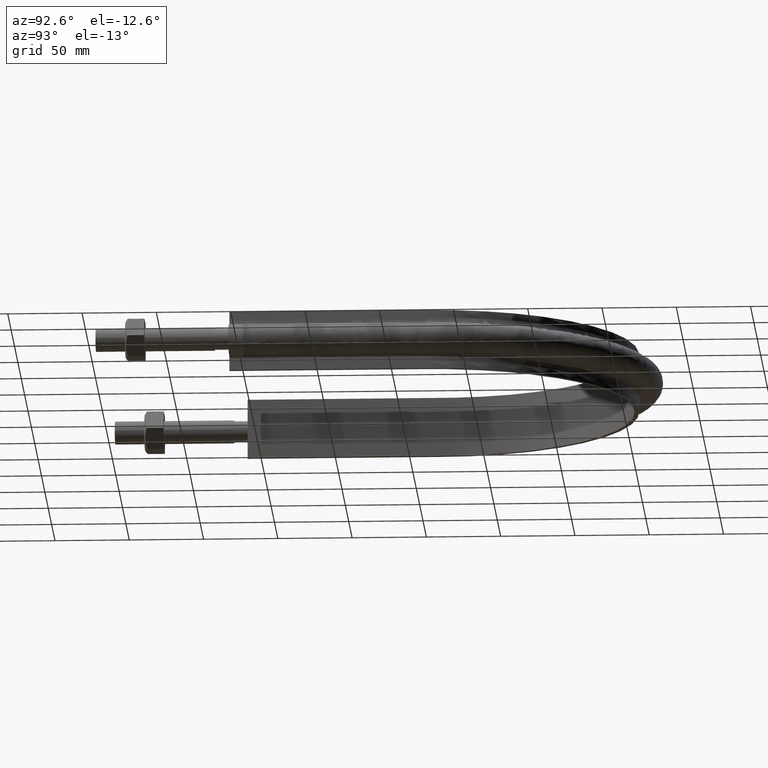
[diagram: clean part render]
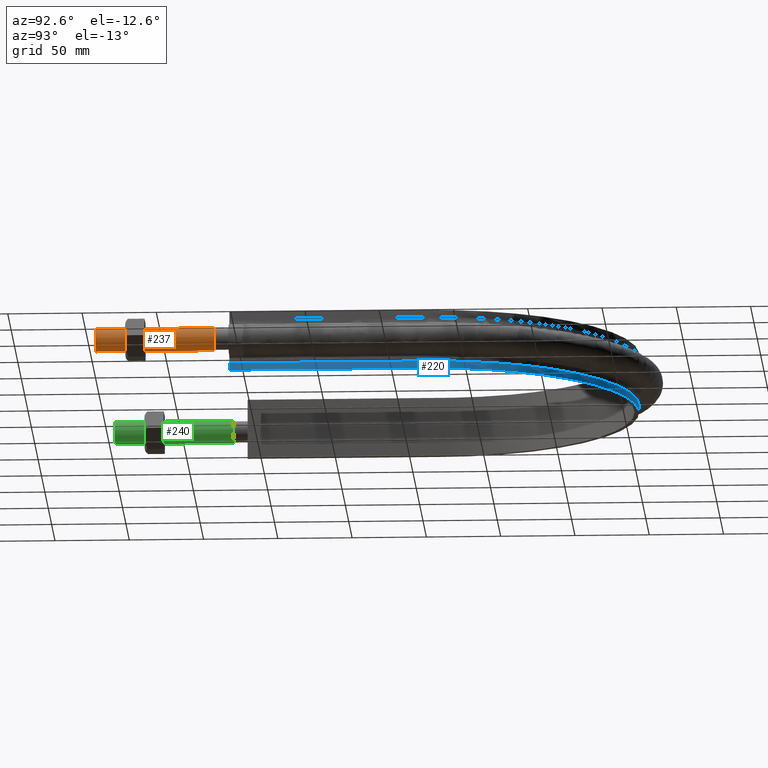
[diagram: same view with three faces highlighted in distinct colors, each labeled with its STEP entity id]
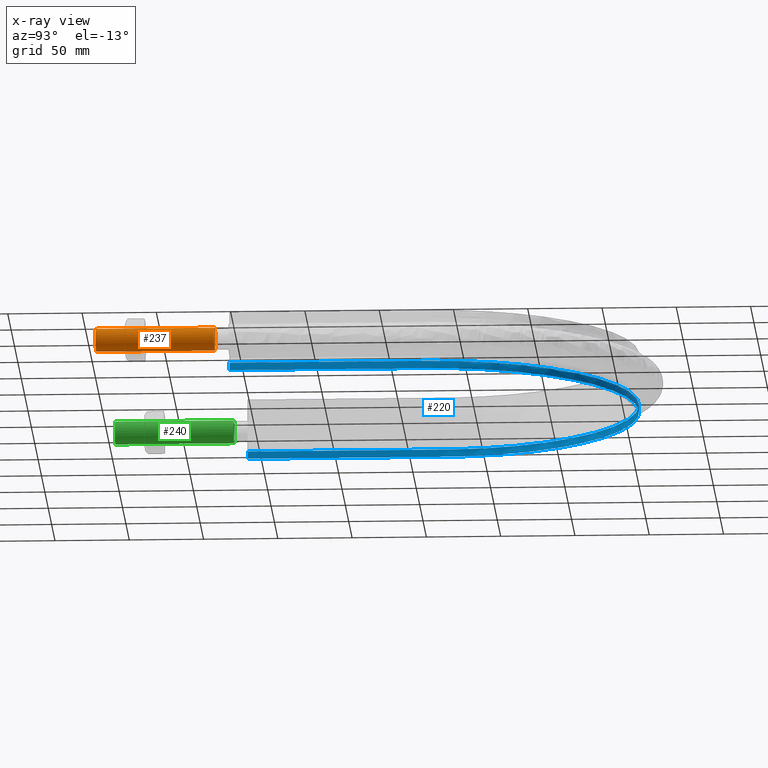
[diagram: x-ray of the same camera — body ghosted, the three highlighted faces saturated]
A machine part, auxiliary view with three faces highlighted in distinct colors.
The next image is the same camera in x-ray (body ghosted, the three faces saturated) — at least one of them is partly hidden behind the body in this view.
Their STEP definitions:

[orange] entity #237 — the highlighted cylindrical surface (bore or boss wall) has radius 7.75 mm, axis along (0, 1, -0).
#237 = ADVANCED_FACE( '', ( #320, #321 ), #322, .T. );
#320 = FACE_OUTER_BOUND( '', #1376, .T. );
#321 = FACE_OUTER_BOUND( '', #1377, .T. );
#322 = CYLINDRICAL_SURFACE( '', #1378, 7.75000000000001 );
#1376 = EDGE_LOOP( '', ( #1800 ) );
#1377 = EDGE_LOOP( '', ( #1801 ) );
#1378 = AXIS2_PLACEMENT_3D( '', #1802, #1803, #1804 );
#1800 = ORIENTED_EDGE( '', *, *, #2096, .T. );
#1801 = ORIENTED_EDGE( '', *, *, #2097, .F. );
#1802 = CARTESIAN_POINT( '', ( 143.000000000000, 80.0000000000000, -2.44921270764475E-014 ) );
#1803 = DIRECTION( '', ( 2.44921270764475E-016, 1.00000000000000, -3.06151588455594E-016 ) );
#1804 = DIRECTION( '', ( 1.00000000000000, -2.44921270764476E-016, -5.47382212626882E-048 ) );
#2096 = EDGE_CURVE( '', #2232, #2232, #2233, .T. );
#2097 = EDGE_CURVE( '', #2234, #2234, #2235, .T. );
#2232 = VERTEX_POINT( '', #2898 );
#2233 = CIRCLE( '', #2899, 7.75000000000001 );
#2234 = VERTEX_POINT( '', #2900 );
#2235 = CIRCLE( '', #2901, 7.75000000000001 );
#2898 = CARTESIAN_POINT( '', ( 150.750000000000, 80.0000000000000, -2.44921270764475E-014 ) );
#2899 = AXIS2_PLACEMENT_3D( '', #3206, #3207, #3208 );
#2900 = CARTESIAN_POINT( '', ( 150.750000000000, -1.94100107080847E-014, 0.000000000000000 ) );
#2901 = AXIS2_PLACEMENT_3D( '', #3209, #3210, #3211 );
#3206 = CARTESIAN_POINT( '', ( 143.000000000000, 80.0000000000000, -2.44921270764475E-014 ) );
#3207 = DIRECTION( '', ( -2.44921270764475E-016, -1.00000000000000, 3.06151588455594E-016 ) );
#3208 = DIRECTION( '', ( 1.00000000000000, -2.44921270764476E-016, 8.28136315232281E-047 ) );
#3209 = CARTESIAN_POINT( '', ( 143.000000000000, -1.75118708596600E-014, -6.41805644305019E-046 ) );
#3210 = DIRECTION( '', ( -2.44921270764475E-016, -1.00000000000000, 3.06151588455594E-016 ) );
#3211 = DIRECTION( '', ( 1.00000000000000, -2.44921270764476E-016, 8.28136315232281E-047 ) );

[blue] entity #220 — the highlighted face is a SurfaceOfExtrusion surface.
#220 = ADVANCED_FACE( '', ( #280 ), #281, .T. );
#280 = FACE_OUTER_BOUND( '', #419, .T. );
#281 = SURFACE_OF_LINEAR_EXTRUSION( '', #420, #421 );
#419 = EDGE_LOOP( '', ( #1570, #1571, #1572, #1573 ) );
#420 = B_SPLINE_CURVE_WITH_KNOTS( '', 3, ( #1574, #1575, #1576, #1577, #1578, #1579, #1580, #1581, #1582, #1583, #1584, #1585, #1586, #1587, #1588, #1589, #1590, #1591, #1592, #1593, #1594, #1595, #1596, #1597, #1598, #1599, #1600, #1601, #1602, #1603, #1604, #1605, #1606, #1607, #1608, #1609, #1610, #1611, #1612, #1613, #1614, #1615, #1616, #1617, #1618, #1619, #1620, #1621, #1622, #1623, #1624, #1625, #1626, #1627, #1628, #1629, #1630, #1631, #1632, #1633, #1634, #1635, #1636, #1637, #1638, #1639, #1640, #1641, #1642, #1643, #1644, #1645, #1646, #1647, #1648, #1649, #1650, #1651, #1652, #1653, #1654, #1655, #1656, #1657, #1658, #1659, #1660, #1661, #1662, #1663, #1664, #1665, #1666 ), .UNSPECIFIED., .F., .F., ( 4, 1, 1, 2, 2, 2, 2, 2, 2, 2, 2, 2, 2, 2, 2, 2, 2, 2, 2, 2, 2, 2, 2, 2, 2, 2, 2, 2, 2, 2, 2, 2, 2, 2, 2, 2, 2, 2, 2, 2, 2, 2, 2, 2, 2, 2, 1, 4 ), ( 0.000000000000000, 0.125000000000002, 0.187500000000003, 0.191406250000003, 0.195312500000003, 0.203125000000002, 0.218750000000003, 0.250000000000003, 0.257812500000003, 0.265625000000003, 0.281250000000002, 0.312500000000002, 0.328125000000002, 0.343750000000002, 0.375000000000001, 0.390625000000001, 0.398437500000001, 0.406250000000001, 0.437500000000001, 0.453125000000001, 0.460937500000000, 0.468750000000000, 0.500000000000000, 0.515625000000000, 0.523437500000000, 0.531250000000000, 0.562500000000000, 0.578124999999999, 0.585937499999999, 0.593749999999999, 0.624999999999999, 0.656249999999999, 0.664062499999999, 0.671874999999999, 0.687499999999998, 0.718749999999998, 0.722656249999998, 0.726562499999998, 0.734374999999998, 0.749999999999998, 0.781249999999997, 0.789062499999997, 0.796874999999997, 0.804687499999997, 0.808593749999997, 0.812499999999996, 0.874999999999998, 1.00000000000000 ), .UNSPECIFIED. );
#421 = VECTOR( '', #1667, 1000.00000000000 );
#1570 = ORIENTED_EDGE( '', *, *, #2046, .T. );
#1571 = ORIENTED_EDGE( '', *, *, #2047, .T. );
#1572 = ORIENTED_EDGE( '', *, *, #2048, .F. );
#1573 = ORIENTED_EDGE( '', *, *, #2049, .F. );
#1574 = CARTESIAN_POINT( '', ( -136.950000000000, 89.5000000000001, -15.0000000000000 ) );
#1575 = CARTESIAN_POINT( '', ( -136.950000000000, 118.108351814219, -15.0000000000000 ) );
#1576 = CARTESIAN_POINT( '', ( -136.950000000000, 161.020879535546, -15.0000000000000 ) );
#1577 = CARTESIAN_POINT( '', ( -136.950000000000, 204.827418251068, -15.0000000000000 ) );
#1578 = CARTESIAN_POINT( '', ( -136.950000000000, 220.025605152372, -15.0000000000000 ) );
#1579 = CARTESIAN_POINT( '', ( -136.950000000000, 221.813627140760, -15.0000000000000 ) );
#1580 = CARTESIAN_POINT( '', ( -136.951346114390, 222.707775042567, -15.0000000000000 ) );
#1581 = CARTESIAN_POINT( '', ( -136.920609614582, 225.386681945511, -15.0000000000000 ) );
#1582 = CARTESIAN_POINT( '', ( -136.864816667886, 227.169029468828, -15.0000000000000 ) );
#1583 = CARTESIAN_POINT( '', ( -136.593146380454, 232.505464995944, -15.0000000000000 ) );
#1584 = CARTESIAN_POINT( '', ( -136.273189661635, 236.048967525582, -15.0000000000000 ) );
#1585 = CARTESIAN_POINT( '', ( -134.901802697672, 246.637621477265, -15.0000000000000 ) );
#1586 = CARTESIAN_POINT( '', ( -133.442512350631, 253.641291170172, -15.0000000000000 ) );
#1587 = CARTESIAN_POINT( '', ( -130.901383601594, 262.322953634697, -15.0000000000000 ) );
#1588 = CARTESIAN_POINT( '', ( -130.357015832177, 264.055610275365, -15.0000000000000 ) );
#1589 = CARTESIAN_POINT( '', ( -129.193847954833, 267.513353357775, -15.0000000000000 ) );
#1590 = CARTESIAN_POINT( '', ( -128.573476846170, 269.242131151953, -15.0000000000000 ) );
#1591 = CARTESIAN_POINT( '', ( -126.618174555290, 274.362723165805, -15.0000000000000 ) );
#1592 = CARTESIAN_POINT( '', ( -125.184490197968, 277.702984774707, -15.0000000000000 ) );
#1593 = CARTESIAN_POINT( '', ( -120.505328593637, 287.510336023068, -15.0000000000000 ) );
#1594 = CARTESIAN_POINT( '', ( -116.886061102882, 293.766429658881, -15.0000000000000 ) );
#1595 = CARTESIAN_POINT( '', ( -110.711856714430, 302.729863608688, -15.0000000000000 ) );
#1596 = CARTESIAN_POINT( '', ( -108.528201325971, 305.647880339849, -15.0000000000000 ) );
#1597 = CARTESIAN_POINT( '', ( -103.904407759561, 311.334716161009, -15.0000000000000 ) );
#1598 = CARTESIAN_POINT( '', ( -101.494535344133, 314.066402872892, -15.0000000000000 ) );
#1599 = CARTESIAN_POINT( '', ( -93.9768857717446, 321.932991567950, -15.0000000000000 ) );
#1600 = CARTESIAN_POINT( '', ( -88.5810092968209, 326.739345713163, -15.0000000000000 ) );
#1601 = CARTESIAN_POINT( '', ( -79.9242816112247, 333.306932196036, -15.0000000000000 ) );
#1602 = CARTESIAN_POINT( '', ( -76.9444034133837, 335.388585548725, -15.0000000000000 ) );
#1603 = CARTESIAN_POINT( '', ( -72.3295994596727, 338.345723108325, -15.0000000000000 ) );
#1604 = CARTESIAN_POINT( '', ( -70.7649027135216, 339.304967513353, -15.0000000000000 ) );
#1605 = CARTESIAN_POINT( '', ( -67.6140063459477, 341.151291429898, -15.0000000000000 ) );
#1606 = CARTESIAN_POINT( '', ( -66.0248395654166, 342.040393152112, -15.0000000000000 ) );
#1607 = CARTESIAN_POINT( '', ( -58.0112237793678, 346.317614365294, -15.0000000000000 ) );
#1608 = CARTESIAN_POINT( '', ( -51.3838695117621, 349.201965048637, -15.0000000000000 ) );
#1609 = CARTESIAN_POINT( '', ( -41.1199306990064, 352.726783518546, -15.0000000000000 ) );
#1610 = CARTESIAN_POINT( '', ( -37.6449536795551, 353.768486983704, -15.0000000000000 ) );
#1611 = CARTESIAN_POINT( '', ( -32.3508572250080, 355.128370680882, -15.0000000000000 ) );
#1612 = CARTESIAN_POINT( '', ( -30.5711219683573, 355.548134877370, -15.0000000000000 ) );
#1613 = CARTESIAN_POINT( '', ( -26.9898806015858, 356.317593884026, -15.0000000000000 ) );
#1614 = CARTESIAN_POINT( '', ( -25.1975634552110, 356.665375332186, -15.0000000000000 ) );
#1615 = CARTESIAN_POINT( '', ( -16.2276412077899, 358.222717729931, -15.0000000000000 ) );
#1616 = CARTESIAN_POINT( '', ( -9.02523440856736, 358.892110978601, -15.0000000000000 ) );
#1617 = CARTESIAN_POINT( '', ( 1.81786937464440, 359.036051739121, -15.0000000000000 ) );
#1618 = CARTESIAN_POINT( '', ( 5.43888442947024, 358.939261125259, -15.0000000000000 ) );
#1619 = CARTESIAN_POINT( '', ( 10.8804397715058, 358.575567070277, -15.0000000000000 ) );
#1620 = CARTESIAN_POINT( '', ( 12.6959650568691, 358.417887683017, -15.0000000000000 ) );
#1621 = CARTESIAN_POINT( '', ( 16.3304010621810, 358.028795956680, -15.0000000000000 ) );
#1622 = CARTESIAN_POINT( '', ( 18.1509778757328, 357.796964222104, -15.0000000000000 ) );
#1623 = CARTESIAN_POINT( '', ( 27.1816143256275, 356.463826032725, -15.0000000000000 ) );
#1624 = CARTESIAN_POINT( '', ( 34.2390508622090, 354.839668956545, -15.0000000000000 ) );
#1625 = CARTESIAN_POINT( '', ( 44.5810778790186, 351.588595998648, -15.0000000000000 ) );
#1626 = CARTESIAN_POINT( '', ( 47.9874716560260, 350.368228980460, -15.0000000000000 ) );
#1627 = CARTESIAN_POINT( '', ( 53.0340989443394, 348.327522487613, -15.0000000000000 ) );
#1628 = CARTESIAN_POINT( '', ( 54.7057757971050, 347.612133002601, -15.0000000000000 ) );
#1629 = CARTESIAN_POINT( '', ( 58.0278931759406, 346.110472498891, -15.0000000000000 ) );
#1630 = CARTESIAN_POINT( '', ( 59.6804492387648, 345.323156348271, -15.0000000000000 ) );
#1631 = CARTESIAN_POINT( '', ( 67.8662269615211, 341.218943105620, -15.0000000000000 ) );
#1632 = CARTESIAN_POINT( '', ( 74.0672509269300, 337.457093171529, -15.0000000000000 ) );
#1633 = CARTESIAN_POINT( '', ( 85.8066697855656, 329.021264559786, -15.0000000000000 ) );
#1634 = CARTESIAN_POINT( '', ( 91.3450708111379, 324.347294323490, -15.0000000000000 ) );
#1635 = CARTESIAN_POINT( '', ( 97.8308624293475, 317.902999344751, -15.0000000000000 ) );
#1636 = CARTESIAN_POINT( '', ( 99.1063522438762, 316.583042958306, -15.0000000000000 ) );
#1637 = CARTESIAN_POINT( '', ( 101.590244963731, 313.906741637720, -15.0000000000000 ) );
#1638 = CARTESIAN_POINT( '', ( 102.801672903783, 312.547491271698, -15.0000000000000 ) );
#1639 = CARTESIAN_POINT( '', ( 106.346254323220, 308.407722078790, -15.0000000000000 ) );
#1640 = CARTESIAN_POINT( '', ( 108.589893323643, 305.565315081670, -15.0000000000000 ) );
#1641 = CARTESIAN_POINT( '', ( 114.970214089517, 296.795700236809, -15.0000000000000 ) );
#1642 = CARTESIAN_POINT( '', ( 118.759288976830, 290.628165305693, -15.0000000000000 ) );
#1643 = CARTESIAN_POINT( '', ( 122.482049801510, 283.316381079695, -15.0000000000000 ) );
#1644 = CARTESIAN_POINT( '', ( 122.888127373353, 282.498732064797, -15.0000000000000 ) );
#1645 = CARTESIAN_POINT( '', ( 123.684984798984, 280.852857558546, -15.0000000000000 ) );
#1646 = CARTESIAN_POINT( '', ( 124.076188679038, 280.023697389435, -15.0000000000000 ) );
#1647 = CARTESIAN_POINT( '', ( 125.223076035006, 277.527782870249, -15.0000000000000 ) );
#1648 = CARTESIAN_POINT( '', ( 125.951536386374, 275.853956327217, -15.0000000000000 ) );
#1649 = CARTESIAN_POINT( '', ( 128.029666807743, 270.803138776699, -15.0000000000000 ) );
#1650 = CARTESIAN_POINT( '', ( 129.272445179675, 267.396908032732, -15.0000000000000 ) );
#1651 = CARTESIAN_POINT( '', ( 132.586786070952, 257.064969568913, -15.0000000000000 ) );
#1652 = CARTESIAN_POINT( '', ( 134.247821790206, 250.026964115281, -15.0000000000000 ) );
#1653 = CARTESIAN_POINT( '', ( 135.630952375180, 241.039845429982, -15.0000000000000 ) );
#1654 = CARTESIAN_POINT( '', ( 135.872641992840, 239.232864972872, -15.0000000000000 ) );
#1655 = CARTESIAN_POINT( '', ( 136.284803757172, 235.599422844282, -15.0000000000000 ) );
#1656 = CARTESIAN_POINT( '', ( 136.455153129533, 233.772516640443, -15.0000000000000 ) );
#1657 = CARTESIAN_POINT( '', ( 136.721567786733, 230.123756924611, -15.0000000000000 ) );
#1658 = CARTESIAN_POINT( '', ( 136.818027802696, 228.298840221395, -15.0000000000000 ) );
#1659 = CARTESIAN_POINT( '', ( 136.907499245267, 225.560658472589, -15.0000000000000 ) );
#1660 = CARTESIAN_POINT( '', ( 136.928116262671, 224.647796719939, -15.0000000000000 ) );
#1661 = CARTESIAN_POINT( '', ( 136.950875956315, 222.821803321072, -15.0000000000000 ) );
#1662 = CARTESIAN_POINT( '', ( 136.950000000000, 221.908627575340, -15.0000000000000 ) );
#1663 = CARTESIAN_POINT( '', ( 136.950000000000, 206.384857445817, -15.0000000000000 ) );
#1664 = CARTESIAN_POINT( '', ( 136.950000000000, 162.553035903636, -15.0000000000000 ) );
#1665 = CARTESIAN_POINT( '', ( 136.950000000000, 118.721214361455, -15.0000000000000 ) );
#1666 = CARTESIAN_POINT( '', ( 136.950000000000, 89.5000000000000, -15.0000000000000 ) );
#1667 = DIRECTION( '', ( -7.49830360911069E-032, -3.06151588455594E-016, -1.00000000000000 ) );
#2046 = EDGE_CURVE( '', #2154, #2155, #2156, .T. );
#2047 = EDGE_CURVE( '', #2155, #2157, #2158, .F. );
#2048 = EDGE_CURVE( '', #2159, #2157, #2160, .T. );
#2049 = EDGE_CURVE( '', #2154, #2159, #2161, .F. );
#2154 = VERTEX_POINT( '', #2452 );
#2155 = VERTEX_POINT( '', #2453 );
#2156 = B_SPLINE_CURVE_WITH_KNOTS( '', 3, ( #2454, #2455, #2456, #2457, #2458, #2459, #2460, #2461, #2462, #2463, #2464, #2465, #2466, #2467, #2468, #2469, #2470, #2471, #2472, #2473, #2474, #2475, #2476, #2477, #2478, #2479, #2480, #2481, #2482, #2483, #2484, #2485, #2486, #2487, #2488, #2489, #2490, #2491, #2492, #2493, #2494, #2495, #2496, #2497, #2498, #2499, #2500, #2501, #2502, #2503, #2504, #2505, #2506, #2507, #2508, #2509, #2510, #2511, #2512, #2513, #2514, #2515, #2516, #2517, #2518, #2519, #2520, #2521, #2522, #2523, #2524, #2525, #2526, #2527, #2528, #2529, #2530, #2531, #2532, #2533, #2534, #2535, #2536, #2537, #2538, #2539, #2540, #2541, #2542, #2543, #2544, #2545, #2546 ), .UNSPECIFIED., .F., .F., ( 4, 1, 1, 2, 2, 2, 2, 2, 2, 2, 2, 2, 2, 2, 2, 2, 2, 2, 2, 2, 2, 2, 2, 2, 2, 2, 2, 2, 2, 2, 2, 2, 2, 2, 2, 2, 2, 2, 2, 2, 2, 2, 2, 2, 2, 2, 1, 4 ), ( 0.000000000000000, 0.125000000000002, 0.187500000000003, 0.191406250000003, 0.195312500000003, 0.203125000000002, 0.218750000000003, 0.250000000000003, 0.257812500000003, 0.265625000000003, 0.281250000000002, 0.312500000000002, 0.328125000000002, 0.343750000000002, 0.375000000000001, 0.390625000000001, 0.398437500000001, 0.406250000000001, 0.437500000000001, 0.453125000000001, 0.460937500000000, 0.468750000000000, 0.500000000000000, 0.515625000000000, 0.523437500000000, 0.531250000000000, 0.562500000000000, 0.578124999999999, 0.585937499999999, 0.593749999999999, 0.624999999999999, 0.656249999999999, 0.664062499999999, 0.671874999999999, 0.687499999999998, 0.718749999999998, 0.722656249999998, 0.726562499999998, 0.734374999999998, 0.749999999999998, 0.781249999999997, 0.789062499999997, 0.796874999999997, 0.804687499999997, 0.808593749999997, 0.812499999999996, 0.874999999999998, 1.00000000000000 ), .UNSPECIFIED. );
#2157 = VERTEX_POINT( '', #2547 );
#2158 = LINE( '', #2548, #2549 );
#2159 = VERTEX_POINT( '', #2550 );
#2160 = B_SPLINE_CURVE_WITH_KNOTS( '', 3, ( #2551, #2552, #2553, #2554, #2555, #2556, #2557, #2558, #2559, #2560, #2561, #2562, #2563, #2564, #2565, #2566, #2567, #2568, #2569, #2570, #2571, #2572, #2573, #2574, #2575, #2576, #2577, #2578, #2579, #2580, #2581, #2582, #2583, #2584, #2585, #2586, #2587, #2588, #2589, #2590, #2591, #2592, #2593, #2594, #2595, #2596, #2597, #2598, #2599, #2600, #2601, #2602, #2603, #2604, #2605, #2606, #2607, #2608, #2609, #2610, #2611, #2612, #2613, #2614, #2615, #2616, #2617, #2618, #2619, #2620, #2621, #2622, #2623, #2624, #2625, #2626, #2627, #2628, #2629, #2630, #2631, #2632, #2633, #2634, #2635, #2636, #2637, #2638, #2639, #2640, #2641, #2642, #2643, #2644, #2645, #2646, #2647, #2648, #2649, #2650, #2651, #2652, #2653, #2654, #2655, #2656, #2657 ), .UNSPECIFIED., .F., .F., ( 4, 1, 2, 2, 2, 2, 2, 2, 2, 2, 2, 2, 2, 2, 2, 2, 2, 2, 2, 2, 2, 2, 2, 2, 2, 2, 2, 2, 2, 2, 2, 2, 2, 2, 2, 1, 2, 2, 2, 2, 2, 2, 2, 2, 2, 2, 2, 2, 2, 2, 2, 2, 2, 1, 4 ), ( 1.38777878078145E-017, 0.0874256844655822, 0.131138526698373, 0.133870579337923, 0.136602631977472, 0.142066737256571, 0.152994947814769, 0.174851368931164, 0.180315474210263, 0.183047526849813, 0.185779579489362, 0.196707790047560, 0.218564211163956, 0.229492421722154, 0.232224474361704, 0.234956527001253, 0.240420632280352, 0.262277053396748, 0.273205263954946, 0.275937316594496, 0.278669369234046, 0.284133474513145, 0.305989895629541, 0.316918106187739, 0.322382211466839, 0.325114264106388, 0.327846316745938, 0.349702737862334, 0.360630948420533, 0.366095053699632, 0.368827106339181, 0.371559158978731, 0.393415580095127, 0.415272001211524, 0.418004053851073, 0.420736106490623, 0.426200211769722, 0.437128422327920, 0.458984843444315, 0.461716896083865, 0.464448948723414, 0.469913054002513, 0.480841264560712, 0.502697685677108, 0.508161790956207, 0.513625896235306, 0.524554106793504, 0.546410527909899, 0.551874633188998, 0.557338738468097, 0.562802843747196, 0.565534896386745, 0.568266949026295, 0.611979791259086, 0.699405475724667 ), .UNSPECIFIED. );
#2161 = LINE( '', #2658, #2659 );
#2452 = CARTESIAN_POINT( '', ( -136.950000000000, 89.5000000000001, -15.0000000000000 ) );
#2453 = CARTESIAN_POINT( '', ( 136.950000000000, 89.5000000000001, -15.0000000000000 ) );
#2454 = CARTESIAN_POINT( '', ( -136.950000000000, 89.5000000000001, -15.0000000000000 ) );
#2455 = CARTESIAN_POINT( '', ( -136.950000000000, 118.108351814219, -15.0000000000000 ) );
#2456 = CARTESIAN_POINT( '', ( -136.950000000000, 161.020879535546, -15.0000000000000 ) );
#2457 = CARTESIAN_POINT( '', ( -136.950000000000, 204.827418251068, -15.0000000000000 ) );
#2458 = CARTESIAN_POINT( '', ( -136.950000000000, 220.025605152372, -15.0000000000000 ) );
#2459 = CARTESIAN_POINT( '', ( -136.950000000000, 221.813627140760, -15.0000000000000 ) );
#2460 = CARTESIAN_POINT( '', ( -136.951346114390, 222.707775042567, -15.0000000000000 ) );
#2461 = CARTESIAN_POINT( '', ( -136.920609614582, 225.386681945511, -15.0000000000000 ) );
#2462 = CARTESIAN_POINT( '', ( -136.864816667886, 227.169029468828, -15.0000000000000 ) );
#2463 = CARTESIAN_POINT( '', ( -136.593146380454, 232.505464995944, -15.0000000000000 ) );
#2464 = CARTESIAN_POINT( '', ( -136.273189661635, 236.048967525582, -15.0000000000000 ) );
#2465 = CARTESIAN_POINT( '', ( -134.901802697672, 246.637621477265, -15.0000000000000 ) );
#2466 = CARTESIAN_POINT( '', ( -133.442512350631, 253.641291170172, -15.0000000000000 ) );
#2467 = CARTESIAN_POINT( '', ( -130.901383601594, 262.322953634697, -15.0000000000000 ) );
#2468 = CARTESIAN_POINT( '', ( -130.357015832177, 264.055610275365, -15.0000000000000 ) );
#2469 = CARTESIAN_POINT( '', ( -129.193847954833, 267.513353357775, -15.0000000000000 ) );
#2470 = CARTESIAN_POINT( '', ( -128.573476846170, 269.242131151953, -15.0000000000000 ) );
#2471 = CARTESIAN_POINT( '', ( -126.618174555290, 274.362723165805, -15.0000000000000 ) );
#2472 = CARTESIAN_POINT( '', ( -125.184490197968, 277.702984774707, -15.0000000000000 ) );
#2473 = CARTESIAN_POINT( '', ( -120.505328593637, 287.510336023068, -15.0000000000000 ) );
#2474 = CARTESIAN_POINT( '', ( -116.886061102882, 293.766429658881, -15.0000000000000 ) );
#2475 = CARTESIAN_POINT( '', ( -110.711856714430, 302.729863608688, -15.0000000000000 ) );
#2476 = CARTESIAN_POINT( '', ( -108.528201325971, 305.647880339849, -15.0000000000000 ) );
#2477 = CARTESIAN_POINT( '', ( -103.904407759561, 311.334716161009, -15.0000000000000 ) );
#2478 = CARTESIAN_POINT( '', ( -101.494535344133, 314.066402872892, -15.0000000000000 ) );
#2479 = CARTESIAN_POINT( '', ( -93.9768857717446, 321.932991567950, -15.0000000000000 ) );
#2480 = CARTESIAN_POINT( '', ( -88.5810092968209, 326.739345713163, -15.0000000000000 ) );
#2481 = CARTESIAN_POINT( '', ( -79.9242816112247, 333.306932196036, -15.0000000000000 ) );
#2482 = CARTESIAN_POINT( '', ( -76.9444034133837, 335.388585548725, -15.0000000000000 ) );
#2483 = CARTESIAN_POINT( '', ( -72.3295994596727, 338.345723108325, -15.0000000000000 ) );
#2484 = CARTESIAN_POINT( '', ( -70.7649027135216, 339.304967513353, -15.0000000000000 ) );
#2485 = CARTESIAN_POINT( '', ( -67.6140063459477, 341.151291429898, -15.0000000000000 ) );
#2486 = CARTESIAN_POINT( '', ( -66.0248395654166, 342.040393152112, -15.0000000000000 ) );
#2487 = CARTESIAN_POINT( '', ( -58.0112237793678, 346.317614365294, -15.0000000000000 ) );
#2488 = CARTESIAN_POINT( '', ( -51.3838695117621, 349.201965048637, -15.0000000000000 ) );
#2489 = CARTESIAN_POINT( '', ( -41.1199306990064, 352.726783518546, -15.0000000000000 ) );
#2490 = CARTESIAN_POINT( '', ( -37.6449536795551, 353.768486983704, -15.0000000000000 ) );
#2491 = CARTESIAN_POINT( '', ( -32.3508572250080, 355.128370680882, -15.0000000000000 ) );
#2492 = CARTESIAN_POINT( '', ( -30.5711219683573, 355.548134877370, -15.0000000000000 ) );
#2493 = CARTESIAN_POINT( '', ( -26.9898806015858, 356.317593884026, -15.0000000000000 ) );
#2494 = CARTESIAN_POINT( '', ( -25.1975634552110, 356.665375332186, -15.0000000000000 ) );
#2495 = CARTESIAN_POINT( '', ( -16.2276412077899, 358.222717729931, -15.0000000000000 ) );
#2496 = CARTESIAN_POINT( '', ( -9.02523440856736, 358.892110978601, -15.0000000000000 ) );
#2497 = CARTESIAN_POINT( '', ( 1.81786937464440, 359.036051739121, -15.0000000000000 ) );
#2498 = CARTESIAN_POINT( '', ( 5.43888442947024, 358.939261125259, -15.0000000000000 ) );
#2499 = CARTESIAN_POINT( '', ( 10.8804397715058, 358.575567070277, -15.0000000000000 ) );
#2500 = CARTESIAN_POINT( '', ( 12.6959650568691, 358.417887683017, -15.0000000000000 ) );
#2501 = CARTESIAN_POINT( '', ( 16.3304010621810, 358.028795956680, -15.0000000000000 ) );
#2502 = CARTESIAN_POINT( '', ( 18.1509778757328, 357.796964222104, -15.0000000000000 ) );
#2503 = CARTESIAN_POINT( '', ( 27.1816143256275, 356.463826032725, -15.0000000000000 ) );
#2504 = CARTESIAN_POINT( '', ( 34.2390508622090, 354.839668956545, -15.0000000000000 ) );
#2505 = CARTESIAN_POINT( '', ( 44.5810778790186, 351.588595998648, -15.0000000000000 ) );
#2506 = CARTESIAN_POINT( '', ( 47.9874716560260, 350.368228980460, -15.0000000000000 ) );
#2507 = CARTESIAN_POINT( '', ( 53.0340989443394, 348.327522487613, -15.0000000000000 ) );
#2508 = CARTESIAN_POINT( '', ( 54.7057757971050, 347.612133002601, -15.0000000000000 ) );
#2509 = CARTESIAN_POINT( '', ( 58.0278931759406, 346.110472498891, -15.0000000000000 ) );
#2510 = CARTESIAN_POINT( '', ( 59.6804492387648, 345.323156348271, -15.0000000000000 ) );
#2511 = CARTESIAN_POINT( '', ( 67.8662269615211, 341.218943105620, -15.0000000000000 ) );
#2512 = CARTESIAN_POINT( '', ( 74.0672509269300, 337.457093171529, -15.0000000000000 ) );
#2513 = CARTESIAN_POINT( '', ( 85.8066697855656, 329.021264559786, -15.0000000000000 ) );
#2514 = CARTESIAN_POINT( '', ( 91.3450708111379, 324.347294323490, -15.0000000000000 ) );
#2515 = CARTESIAN_POINT( '', ( 97.8308624293475, 317.902999344751, -15.0000000000000 ) );
#2516 = CARTESIAN_POINT( '', ( 99.1063522438762, 316.583042958306, -15.0000000000000 ) );
#2517 = CARTESIAN_POINT( '', ( 101.590244963731, 313.906741637720, -15.0000000000000 ) );
#2518 = CARTESIAN_POINT( '', ( 102.801672903783, 312.547491271698, -15.0000000000000 ) );
#2519 = CARTESIAN_POINT( '', ( 106.346254323220, 308.407722078790, -15.0000000000000 ) );
#2520 = CARTESIAN_POINT( '', ( 108.589893323643, 305.565315081670, -15.0000000000000 ) );
#2521 = CARTESIAN_POINT( '', ( 114.970214089517, 296.795700236809, -15.0000000000000 ) );
#2522 = CARTESIAN_POINT( '', ( 118.759288976830, 290.628165305693, -15.0000000000000 ) );
#2523 = CARTESIAN_POINT( '', ( 122.482049801510, 283.316381079695, -15.0000000000000 ) );
#2524 = CARTESIAN_POINT( '', ( 122.888127373353, 282.498732064797, -15.0000000000000 ) );
#2525 = CARTESIAN_POINT( '', ( 123.684984798984, 280.852857558546, -15.0000000000000 ) );
#2526 = CARTESIAN_POINT( '', ( 124.076188679038, 280.023697389435, -15.0000000000000 ) );
#2527 = CARTESIAN_POINT( '', ( 125.223076035006, 277.527782870249, -15.0000000000000 ) );
#2528 = CARTESIAN_POINT( '', ( 125.951536386374, 275.853956327217, -15.0000000000000 ) );
#2529 = CARTESIAN_POINT( '', ( 128.029666807743, 270.803138776699, -15.0000000000000 ) );
#2530 = CARTESIAN_POINT( '', ( 129.272445179675, 267.396908032732, -15.0000000000000 ) );
#2531 = CARTESIAN_POINT( '', ( 132.586786070952, 257.064969568913, -15.0000000000000 ) );
#2532 = CARTESIAN_POINT( '', ( 134.247821790206, 250.026964115281, -15.0000000000000 ) );
#2533 = CARTESIAN_POINT( '', ( 135.630952375180, 241.039845429982, -15.0000000000000 ) );
#2534 = CARTESIAN_POINT( '', ( 135.872641992840, 239.232864972872, -15.0000000000000 ) );
#2535 = CARTESIAN_POINT( '', ( 136.284803757172, 235.599422844282, -15.0000000000000 ) );
#2536 = CARTESIAN_POINT( '', ( 136.455153129533, 233.772516640443, -15.0000000000000 ) );
#2537 = CARTESIAN_POINT( '', ( 136.721567786733, 230.123756924611, -15.0000000000000 ) );
#2538 = CARTESIAN_POINT( '', ( 136.818027802696, 228.298840221395, -15.0000000000000 ) );
#2539 = CARTESIAN_POINT( '', ( 136.907499245267, 225.560658472589, -15.0000000000000 ) );
#2540 = CARTESIAN_POINT( '', ( 136.928116262671, 224.647796719939, -15.0000000000000 ) );
#2541 = CARTESIAN_POINT( '', ( 136.950875956315, 222.821803321072, -15.0000000000000 ) );
#2542 = CARTESIAN_POINT( '', ( 136.950000000000, 221.908627575340, -15.0000000000000 ) );
#2543 = CARTESIAN_POINT( '', ( 136.950000000000, 206.384857445817, -15.0000000000000 ) );
#2544 = CARTESIAN_POINT( '', ( 136.950000000000, 162.553035903636, -15.0000000000000 ) );
#2545 = CARTESIAN_POINT( '', ( 136.950000000000, 118.721214361455, -15.0000000000000 ) );
#2546 = CARTESIAN_POINT( '', ( 136.950000000000, 89.5000000000000, -15.0000000000000 ) );
#2547 = CARTESIAN_POINT( '', ( 136.950000000000, 89.5000000000001, -20.0000000000000 ) );
#2548 = CARTESIAN_POINT( '', ( 136.950000000000, 89.5000000000001, 15.0000000000000 ) );
#2549 = VECTOR( '', #3144, 1000.00000000000 );
#2550 = CARTESIAN_POINT( '', ( -136.950000000000, 89.5000000000001, -20.0000000000000 ) );
#2551 = CARTESIAN_POINT( '', ( -136.950000000000, 89.5000000000001, -20.0000000000000 ) );
#2552 = CARTESIAN_POINT( '', ( -136.950000000000, 118.641900248097, -20.0000000000000 ) );
#2553 = CARTESIAN_POINT( '', ( -136.950000000000, 162.354750620243, -20.0000000000000 ) );
#2554 = CARTESIAN_POINT( '', ( -136.949999999999, 206.067600992389, -20.0000000000000 ) );
#2555 = CARTESIAN_POINT( '', ( -136.950000000000, 221.549235499190, -20.0000000000000 ) );
#2556 = CARTESIAN_POINT( '', ( -136.952005766823, 222.459921105956, -20.0000000000000 ) );
#2557 = CARTESIAN_POINT( '', ( -136.934979206279, 224.281279481059, -20.0000000000000 ) );
#2558 = CARTESIAN_POINT( '', ( -136.916553871832, 225.191952619812, -20.0000000000000 ) );
#2559 = CARTESIAN_POINT( '', ( -136.834753701177, 227.923955849784, -20.0000000000000 ) );
#2560 = CARTESIAN_POINT( '', ( -136.743599783762, 229.741272047871, -20.0000000000000 ) );
#2561 = CARTESIAN_POINT( '', ( -136.363495553162, 235.166484778743, -20.0000000000000 ) );
#2562 = CARTESIAN_POINT( '', ( -135.967488703048, 238.753870458484, -20.0000000000000 ) );
#2563 = CARTESIAN_POINT( '', ( -134.367551969832, 249.431038801508, -20.0000000000000 ) );
#2564 = CARTESIAN_POINT( '', ( -132.750553866294, 256.435595074195, -20.0000000000000 ) );
#2565 = CARTESIAN_POINT( '', ( -130.033489035348, 265.047725779314, -20.0000000000000 ) );
#2566 = CARTESIAN_POINT( '', ( -129.454886141076, 266.762891350757, -20.0000000000000 ) );
#2567 = CARTESIAN_POINT( '', ( -128.533317502651, 269.324567410146, -20.0000000000000 ) );
#2568 = CARTESIAN_POINT( '', ( -128.217212893148, 270.176620027551, -20.0000000000000 ) );
#2569 = CARTESIAN_POINT( '', ( -127.566740219219, 271.876957051045, -20.0000000000000 ) );
#2570 = CARTESIAN_POINT( '', ( -127.232398800356, 272.725180838082, -20.0000000000000 ) );
#2571 = CARTESIAN_POINT( '', ( -125.522807242117, 276.937555990540, -20.0000000000000 ) );
#2572 = CARTESIAN_POINT( '', ( -124.027890382201, 280.231015655089, -20.0000000000000 ) );
#2573 = CARTESIAN_POINT( '', ( -119.177772488664, 289.891903517811, -20.0000000000000 ) );
#2574 = CARTESIAN_POINT( '', ( -115.456951462216, 296.039688790398, -20.0000000000000 ) );
#2575 = CARTESIAN_POINT( '', ( -109.152951019672, 304.827169774975, -20.0000000000000 ) );
#2576 = CARTESIAN_POINT( '', ( -106.930050833054, 307.683299996956, -20.0000000000000 ) );
#2577 = CARTESIAN_POINT( '', ( -103.994442146736, 311.159156375515, -20.0000000000000 ) );
#2578 = CARTESIAN_POINT( '', ( -103.399206220783, 311.849830869774, -20.0000000000000 ) );
#2579 = CARTESIAN_POINT( '', ( -102.198265091278, 313.215468669274, -20.0000000000000 ) );
#2580 = CARTESIAN_POINT( '', ( -101.591920700932, 313.891203542516, -20.0000000000000 ) );
#2581 = CARTESIAN_POINT( '', ( -99.7553846231917, 315.897299082128, -20.0000000000000 ) );
#2582 = CARTESIAN_POINT( '', ( -98.5077032633148, 317.206566629285, -20.0000000000000 ) );
#2583 = CARTESIAN_POINT( '', ( -92.1539858603015, 323.613835991366, -20.0000000000000 ) );
#2584 = CARTESIAN_POINT( '', ( -86.7024715106628, 328.295179626357, -20.0000000000000 ) );
#2585 = CARTESIAN_POINT( '', ( -77.9891669345084, 334.670721620160, -20.0000000000000 ) );
#2586 = CARTESIAN_POINT( '', ( -74.9946413234083, 336.687249879647, -20.0000000000000 ) );
#2587 = CARTESIAN_POINT( '', ( -71.1363767592731, 339.069086719331, -20.0000000000000 ) );
#2588 = CARTESIAN_POINT( '', ( -70.3589796436372, 339.538526390094, -20.0000000000000 ) );
#2589 = CARTESIAN_POINT( '', ( -68.7925101038848, 340.463324926284, -20.0000000000000 ) );
#2590 = CARTESIAN_POINT( '', ( -68.0028416365686, 340.918994503188, -20.0000000000000 ) );
#2591 = CARTESIAN_POINT( '', ( -65.6265150792926, 342.258978990771, -20.0000000000000 ) );
#2592 = CARTESIAN_POINT( '', ( -64.0295971988765, 343.118030590868, -20.0000000000000 ) );
#2593 = CARTESIAN_POINT( '', ( -55.9824089667708, 347.244365806938, -20.0000000000000 ) );
#2594 = CARTESIAN_POINT( '', ( -49.3439512001563, 350.003826159947, -20.0000000000000 ) );
#2595 = CARTESIAN_POINT( '', ( -39.0910082445006, 353.346268295589, -20.0000000000000 ) );
#2596 = CARTESIAN_POINT( '', ( -35.6241551653312, 354.327634953125, -20.0000000000000 ) );
#2597 = CARTESIAN_POINT( '', ( -30.3492784457249, 355.598384851548, -20.0000000000000 ) );
#2598 = CARTESIAN_POINT( '', ( -28.5785337099396, 355.988365122303, -20.0000000000000 ) );
#2599 = CARTESIAN_POINT( '', ( -25.9034309357622, 356.522102744637, -20.0000000000000 ) );
#2600 = CARTESIAN_POINT( '', ( -25.0077107436069, 356.691611247168, -20.0000000000000 ) );
#2601 = CARTESIAN_POINT( '', ( -23.2172138820111, 357.012112274077, -20.0000000000000 ) );
#2602 = CARTESIAN_POINT( '', ( -22.3218036874236, 357.163270419115, -20.0000000000000 ) );
#2603 = CARTESIAN_POINT( '', ( -14.2616746941701, 358.442909678168, -20.0000000000000 ) );
#2604 = CARTESIAN_POINT( '', ( -7.08688203431759, 359.005162357812, -20.0000000000000 ) );
#2605 = CARTESIAN_POINT( '', ( 3.69045053044641, 358.997356057590, -20.0000000000000 ) );
#2606 = CARTESIAN_POINT( '', ( 7.28543714268744, 358.851850186394, -20.0000000000000 ) );
#2607 = CARTESIAN_POINT( '', ( 12.6817359396718, 358.418941046075, -20.0000000000000 ) );
#2608 = CARTESIAN_POINT( '', ( 14.4811397915332, 358.238800753868, -20.0000000000000 ) );
#2609 = CARTESIAN_POINT( '', ( 17.1812121944193, 357.914258555031, -20.0000000000000 ) );
#2610 = CARTESIAN_POINT( '', ( 18.0813968219170, 357.797056870437, -20.0000000000000 ) );
#2611 = CARTESIAN_POINT( '', ( 19.8820902819434, 357.544430686410, -20.0000000000000 ) );
#2612 = CARTESIAN_POINT( '', ( 20.7835449490382, 357.408813108141, -20.0000000000000 ) );
#2613 = CARTESIAN_POINT( '', ( 28.8670965883793, 356.111328549365, -20.0000000000000 ) );
#2614 = CARTESIAN_POINT( '', ( 35.8703135520951, 354.406800400233, -20.0000000000000 ) );
#2615 = CARTESIAN_POINT( '', ( 49.5251538415518, 349.933849723645, -20.0000000000000 ) );
#2616 = CARTESIAN_POINT( '', ( 56.1748232267813, 347.159514727643, -20.0000000000000 ) );
#2617 = CARTESIAN_POINT( '', ( 63.4492399728063, 343.413652350481, -20.0000000000000 ) );
#2618 = CARTESIAN_POINT( '', ( 64.2555412528486, 342.988297906813, -20.0000000000000 ) );
#2619 = CARTESIAN_POINT( '', ( 65.8566175141614, 342.123190874318, -20.0000000000000 ) );
#2620 = CARTESIAN_POINT( '', ( 68.2414579242975, 340.803750954362, -20.0000000000000 ) );
#2621 = CARTESIAN_POINT( '', ( 70.5763589403729, 339.419469626311, -20.0000000000000 ) );
#2622 = CARTESIAN_POINT( '', ( 75.1805857318909, 336.565763947978, -20.0000000000000 ) );
#2623 = CARTESIAN_POINT( '', ( 78.1627035340792, 334.549856366453, -20.0000000000000 ) );
#2624 = CARTESIAN_POINT( '', ( 86.8543207620378, 328.171383663369, -20.0000000000000 ) );
#2625 = CARTESIAN_POINT( '', ( 92.3077229888365, 323.476301431766, -20.0000000000000 ) );
#2626 = CARTESIAN_POINT( '', ( 98.0418417248391, 317.673728261728, -20.0000000000000 ) );
#2627 = CARTESIAN_POINT( '', ( 98.6733697505272, 317.021731690665, -20.0000000000000 ) );
#2628 = CARTESIAN_POINT( '', ( 99.9251833237740, 315.703141292681, -20.0000000000000 ) );
#2629 = CARTESIAN_POINT( '', ( 100.546136743134, 315.035752086239, -20.0000000000000 ) );
#2630 = CARTESIAN_POINT( '', ( 102.386046552855, 313.018007311470, -20.0000000000000 ) );
#2631 = CARTESIAN_POINT( '', ( 103.581668710414, 311.652670943040, -20.0000000000000 ) );
#2632 = CARTESIAN_POINT( '', ( 107.077810366193, 307.497593093920, -20.0000000000000 ) );
#2633 = CARTESIAN_POINT( '', ( 109.287409665402, 304.648655660811, -20.0000000000000 ) );
#2634 = CARTESIAN_POINT( '', ( 115.563663674951, 295.872310524430, -20.0000000000000 ) );
#2635 = CARTESIAN_POINT( '', ( 119.278439319528, 289.715802833907, -20.0000000000000 ) );
#2636 = CARTESIAN_POINT( '', ( 123.322162063997, 281.629687512520, -20.0000000000000 ) );
#2637 = CARTESIAN_POINT( '', ( 124.100657851928, 279.992770208303, -20.0000000000000 ) );
#2638 = CARTESIAN_POINT( '', ( 125.595826737250, 276.678684334612, -20.0000000000000 ) );
#2639 = CARTESIAN_POINT( '', ( 126.312684101755, 275.000403133013, -20.0000000000000 ) );
#2640 = CARTESIAN_POINT( '', ( 128.350441665646, 269.950404789005, -20.0000000000000 ) );
#2641 = CARTESIAN_POINT( '', ( 129.565681668816, 266.548771227836, -20.0000000000000 ) );
#2642 = CARTESIAN_POINT( '', ( 132.799201309552, 256.243261059047, -20.0000000000000 ) );
#2643 = CARTESIAN_POINT( '', ( 134.406489655848, 249.239070076663, -20.0000000000000 ) );
#2644 = CARTESIAN_POINT( '', ( 135.730368078418, 240.316580552522, -20.0000000000000 ) );
#2645 = CARTESIAN_POINT( '', ( 135.960596827439, 238.523650463587, -20.0000000000000 ) );
#2646 = CARTESIAN_POINT( '', ( 136.350715609651, 234.920622076927, -20.0000000000000 ) );
#2647 = CARTESIAN_POINT( '', ( 136.510773884774, 233.109390090216, -20.0000000000000 ) );
#2648 = CARTESIAN_POINT( '', ( 136.758613068843, 229.474281669831, -20.0000000000000 ) );
#2649 = CARTESIAN_POINT( '', ( 136.846031799769, 227.656639207718, -20.0000000000000 ) );
#2650 = CARTESIAN_POINT( '', ( 136.922369077726, 224.930043041099, -20.0000000000000 ) );
#2651 = CARTESIAN_POINT( '', ( 136.939052762000, 224.021156467248, -20.0000000000000 ) );
#2652 = CARTESIAN_POINT( '', ( 136.951967908155, 222.203333870085, -20.0000000000000 ) );
#2653 = CARTESIAN_POINT( '', ( 136.950000000000, 221.294402200342, -20.0000000000000 ) );
#2654 = CARTESIAN_POINT( '', ( 136.950000000000, 205.842644700992, -20.0000000000000 ) );
#2655 = CARTESIAN_POINT( '', ( 136.950000000000, 162.214152938120, -20.0000000000000 ) );
#2656 = CARTESIAN_POINT( '', ( 136.950000000000, 118.585661175248, -20.0000000000000 ) );
#2657 = CARTESIAN_POINT( '', ( 136.950000000000, 89.5000000000003, -20.0000000000000 ) );
#2658 = CARTESIAN_POINT( '', ( -136.950000000000, 89.5000000000001, 15.0000000000000 ) );
#2659 = VECTOR( '', #3145, 1000.00000000000 );
#3144 = DIRECTION( '', ( 0.000000000000000, 0.000000000000000, 1.00000000000000 ) );
#3145 = DIRECTION( '', ( 0.000000000000000, 0.000000000000000, 1.00000000000000 ) );

[green] entity #240 — the highlighted cylindrical surface (bore or boss wall) has radius 7.75 mm, axis along (0, 1, -0).
#240 = ADVANCED_FACE( '', ( #328, #329 ), #330, .T. );
#328 = FACE_OUTER_BOUND( '', #1384, .T. );
#329 = FACE_OUTER_BOUND( '', #1385, .T. );
#330 = CYLINDRICAL_SURFACE( '', #1386, 7.75000000000001 );
#1384 = EDGE_LOOP( '', ( #1814 ) );
#1385 = EDGE_LOOP( '', ( #1815 ) );
#1386 = AXIS2_PLACEMENT_3D( '', #1816, #1817, #1818 );
#1814 = ORIENTED_EDGE( '', *, *, #2098, .T. );
#1815 = ORIENTED_EDGE( '', *, *, #2099, .F. );
#1816 = CARTESIAN_POINT( '', ( -143.000000000000, 80.0000000000001, -2.44921270764475E-014 ) );
#1817 = DIRECTION( '', ( 2.44921270764475E-016, 1.00000000000000, -3.06151588455594E-016 ) );
#1818 = DIRECTION( '', ( 1.00000000000000, -2.44921270764476E-016, -5.47382212626882E-048 ) );
#2098 = EDGE_CURVE( '', #2236, #2236, #2237, .T. );
#2099 = EDGE_CURVE( '', #2238, #2238, #2239, .T. );
#2236 = VERTEX_POINT( '', #2902 );
#2237 = CIRCLE( '', #2903, 7.75000000000001 );
#2238 = VERTEX_POINT( '', #2904 );
#2239 = CIRCLE( '', #2905, 7.75000000000001 );
#2902 = CARTESIAN_POINT( '', ( -135.250000000000, 80.0000000000001, -2.44921270764475E-014 ) );
#2903 = AXIS2_PLACEMENT_3D( '', #3212, #3213, #3214 );
#2904 = CARTESIAN_POINT( '', ( -135.250000000000, 7.11248822424931E-014, 0.000000000000000 ) );
#2905 = AXIS2_PLACEMENT_3D( '', #3215, #3216, #3217 );
#3212 = CARTESIAN_POINT( '', ( -143.000000000000, 80.0000000000001, -2.44921270764475E-014 ) );
#3213 = DIRECTION( '', ( -2.44921270764475E-016, -1.00000000000000, 3.06151588455594E-016 ) );
#3214 = DIRECTION( '', ( 1.00000000000000, -2.44921270764476E-016, -5.47382212626882E-048 ) );
#3215 = CARTESIAN_POINT( '', ( -143.000000000000, 7.30230220909178E-014, 4.24221214785834E-047 ) );
#3216 = DIRECTION( '', ( -2.44921270764475E-016, -1.00000000000000, 3.06151588455594E-016 ) );
#3217 = DIRECTION( '', ( 1.00000000000000, -2.44921270764476E-016, -5.47382212626882E-048 ) );